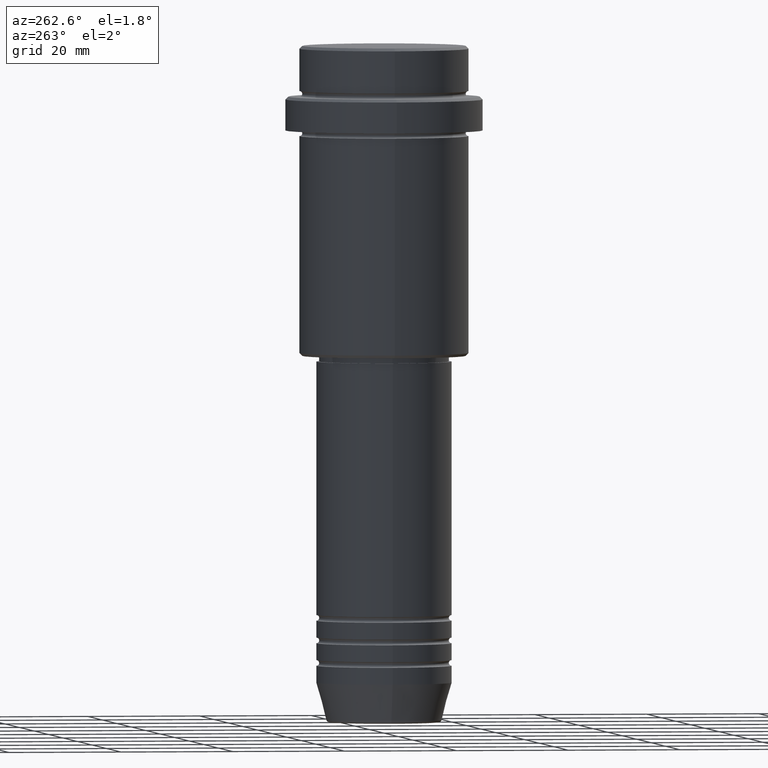
[diagram: clean part render]
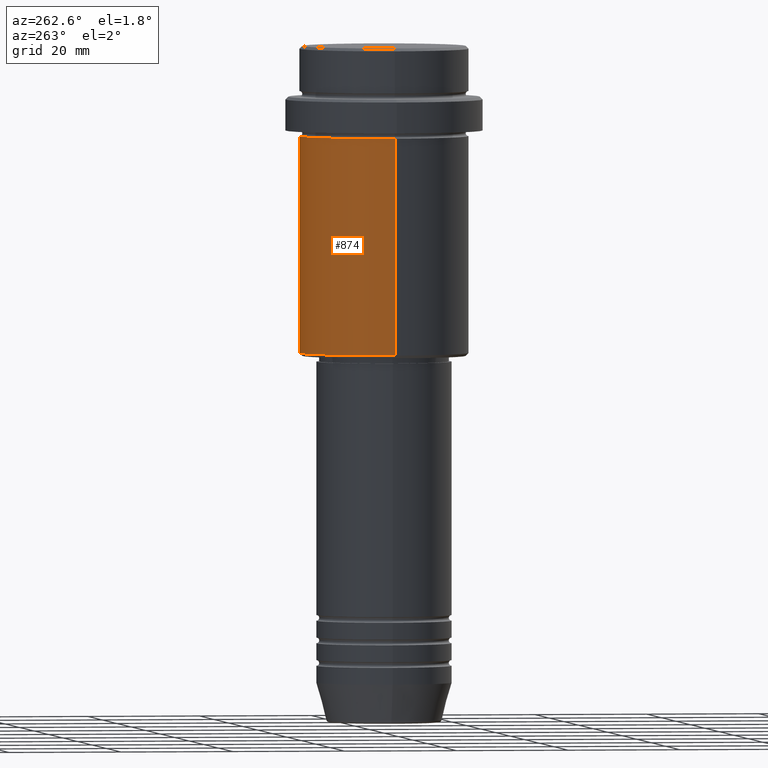
[diagram: same view with one face highlighted and labeled with its STEP entity id]
A machine part, auxiliary view. The second image highlights one B-rep face of the part: STEP entity #874.
In plain terms, the highlighted cylindrical surface (partial cylindrical patch) has radius 15 mm, axis along (-0, -0, 1).
Its self-contained STEP definition (entity closure, byte-faithful):
#3 = DIRECTION ( 'NONE',  ( -0.000000000000000000, -0.000000000000000000, 1.000000000000000000 ) ) ;
#55 = ORIENTED_EDGE ( 'NONE', *, *, #759, .F. ) ;
#82 = DIRECTION ( 'NONE',  ( -0.000000000000000000, -0.000000000000000000, 1.000000000000000000 ) ) ;
#87 = CARTESIAN_POINT ( 'NONE',  ( 0.000000000000000000, 0.000000000000000000, -16.00000000000000000 ) ) ;
#120 = CARTESIAN_POINT ( 'NONE',  ( 0.000000000000000000, 0.000000000000000000, -54.49999999999997868 ) ) ;
#145 = VERTEX_POINT ( 'NONE', #400 ) ;
#154 = CIRCLE ( 'NONE', #393, 15.00000000000000178 ) ;
#179 = CYLINDRICAL_SURFACE ( 'NONE', #1044, 15.00000000000000000 ) ;
#211 = CARTESIAN_POINT ( 'NONE',  ( -15.00000000000000000, 1.836970198721029589E-15, 0.000000000000000000 ) ) ;
#236 = ORIENTED_EDGE ( 'NONE', *, *, #237, .F. ) ;
#237 = EDGE_CURVE ( 'NONE', #1026, #570, #154, .T. ) ;
#248 = CARTESIAN_POINT ( 'NONE',  ( -15.00000000000000355, 1.836970198721029983E-15, -16.00000000000000000 ) ) ;
#282 = DIRECTION ( 'NONE',  ( -0.000000000000000000, -0.000000000000000000, 1.000000000000000000 ) ) ;
#299 = VECTOR ( 'NONE', #82, 1000.000000000000000 ) ;
#334 = DIRECTION ( 'NONE',  ( 1.000000000000000000, 0.000000000000000000, 0.000000000000000000 ) ) ;
#369 = LINE ( 'NONE', #211, #299 ) ;
#393 = AXIS2_PLACEMENT_3D ( 'NONE', #87, #1005, #760 ) ;
#400 = CARTESIAN_POINT ( 'NONE',  ( -15.00000000000000000, 1.836970198721029589E-15, -54.49999999999997868 ) ) ;
#417 = CARTESIAN_POINT ( 'NONE',  ( 15.00000000000000178, 0.000000000000000000, -16.00000000000000000 ) ) ;
#455 = CARTESIAN_POINT ( 'NONE',  ( 0.000000000000000000, 0.000000000000000000, 0.000000000000000000 ) ) ;
#460 = DIRECTION ( 'NONE',  ( -1.000000000000000000, 0.000000000000000000, 0.000000000000000000 ) ) ;
#503 = EDGE_CURVE ( 'NONE', #837, #145, #984, .T. ) ;
#570 = VERTEX_POINT ( 'NONE', #248 ) ;
#576 = ORIENTED_EDGE ( 'NONE', *, *, #898, .T. ) ;
#629 = CARTESIAN_POINT ( 'NONE',  ( 15.00000000000000000, 0.000000000000000000, 0.000000000000000000 ) ) ;
#688 = AXIS2_PLACEMENT_3D ( 'NONE', #120, #3, #460 ) ;
#720 = LINE ( 'NONE', #629, #1242 ) ;
#759 = EDGE_CURVE ( 'NONE', #837, #1026, #720, .T. ) ;
#760 = DIRECTION ( 'NONE',  ( 1.000000000000000000, 0.000000000000000000, 0.000000000000000000 ) ) ;
#764 = FACE_OUTER_BOUND ( 'NONE', #940, .T. ) ;
#837 = VERTEX_POINT ( 'NONE', #1198 ) ;
#874 = ADVANCED_FACE ( 'NONE', ( #764 ), #179, .T. ) ;
#890 = DIRECTION ( 'NONE',  ( -0.000000000000000000, -0.000000000000000000, 1.000000000000000000 ) ) ;
#898 = EDGE_CURVE ( 'NONE', #145, #570, #369, .T. ) ;
#940 = EDGE_LOOP ( 'NONE', ( #969, #576, #236, #55 ) ) ;
#969 = ORIENTED_EDGE ( 'NONE', *, *, #503, .T. ) ;
#984 = CIRCLE ( 'NONE', #688, 15.00000000000000000 ) ;
#1005 = DIRECTION ( 'NONE',  ( -0.000000000000000000, -0.000000000000000000, 1.000000000000000000 ) ) ;
#1026 = VERTEX_POINT ( 'NONE', #417 ) ;
#1044 = AXIS2_PLACEMENT_3D ( 'NONE', #455, #890, #334 ) ;
#1198 = CARTESIAN_POINT ( 'NONE',  ( 15.00000000000000000, 0.000000000000000000, -54.49999999999997868 ) ) ;
#1242 = VECTOR ( 'NONE', #282, 1000.000000000000000 ) ;